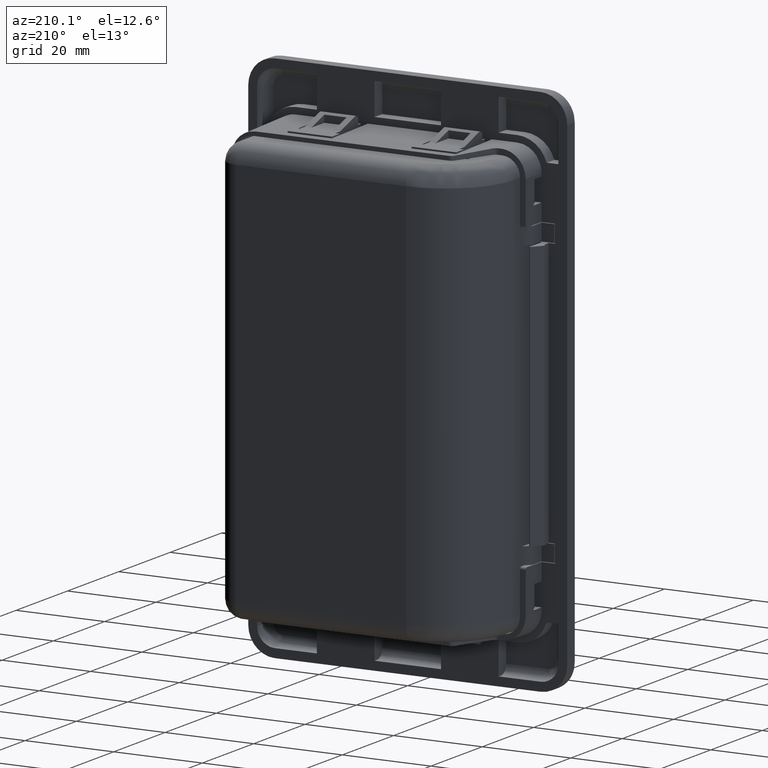
[diagram: clean part render]
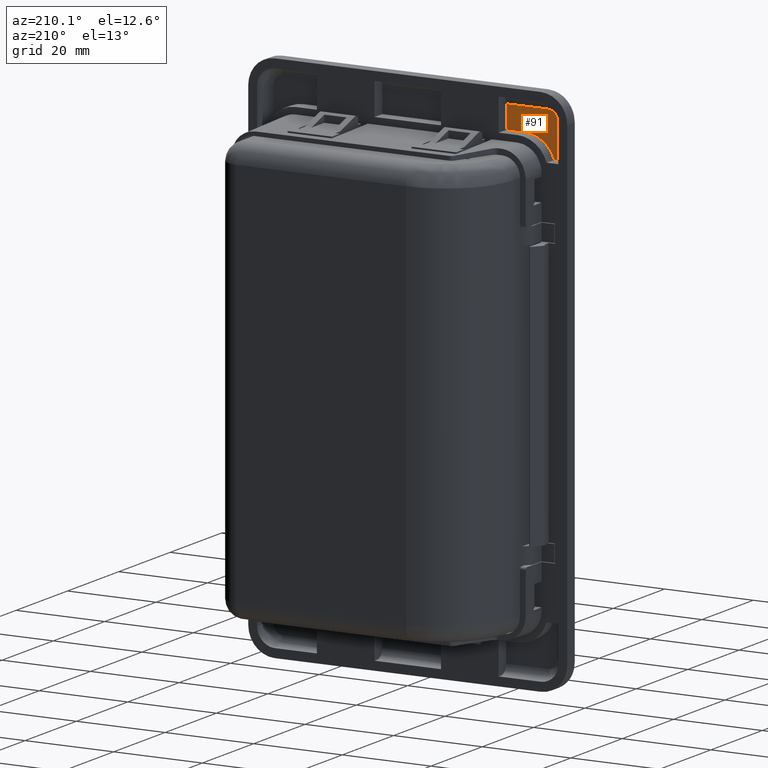
[diagram: same view with one face highlighted and labeled with its STEP entity id]
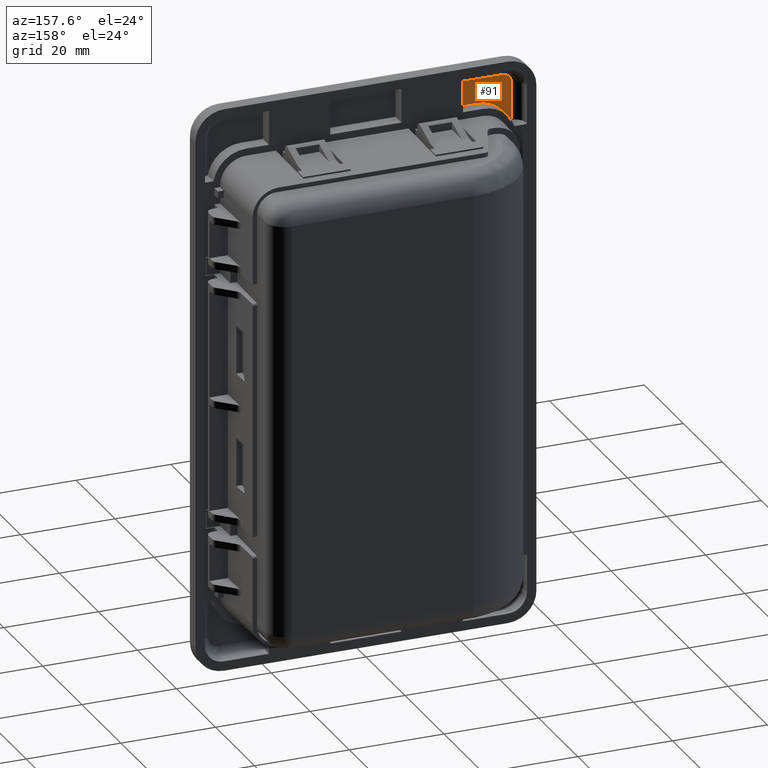
[diagram: same view with one face highlighted and labeled with its STEP entity id]
A machine part, auxiliary view. The second image highlights one B-rep face of the part: STEP entity #91.
A second angle (auxiliary view) of the same face is appended — the face is thin or edge-on in the first view.
In plain terms, the highlighted planar face has unit normal (-0, 1, 0).
Its self-contained STEP definition (entity closure, byte-faithful):
#91=ADVANCED_FACE('',(#1526),#1525,.T.);
#1525=PLANE('',#11063);
#1526=FACE_OUTER_BOUND('',#11064,.T.);
#11060=CARTESIAN_POINT('',(-3.31499999995E+001,-3.00000000001E+000,4.50000000000E+001));
#11061=DIRECTION('',(-0.00000000000E+000,1.00000000000E+000,0.00000000000E+000));
#11062=DIRECTION('',(0.00000000000E+000,0.00000000000E+000,1.00000000000E+000));
#11063=AXIS2_PLACEMENT_3D('',#11060,#11061,#11062);
#11064=EDGE_LOOP('',(#19140,#19141,#19142,#19143,#19144,#19145,#19146));
#19140=ORIENTED_EDGE('',*,*,#23863,.T.);
#19141=ORIENTED_EDGE('',*,*,#23864,.T.);
#19142=ORIENTED_EDGE('',*,*,#23840,.F.);
#19143=ORIENTED_EDGE('',*,*,#23847,.F.);
#19144=ORIENTED_EDGE('',*,*,#23850,.T.);
#19145=ORIENTED_EDGE('',*,*,#23853,.F.);
#19146=ORIENTED_EDGE('',*,*,#23865,.T.);
#23840=EDGE_CURVE('',#27302,#27303,#27304,.T.);
#23847=EDGE_CURVE('',#27344,#27302,#27351,.T.);
#23850=EDGE_CURVE('',#27344,#27364,#27371,.T.);
#23853=EDGE_CURVE('',#27385,#27364,#27392,.T.);
#23863=EDGE_CURVE('',#27456,#27457,#27458,.T.);
#23864=EDGE_CURVE('',#27457,#27303,#27464,.T.);
#23865=EDGE_CURVE('',#27385,#27456,#27470,.T.);
#27302=VERTEX_POINT('',#42540);
#27303=VERTEX_POINT('',#42541);
#27304=LINE('',#42542,#42543);
#27344=VERTEX_POINT('',#42565);
#27351=LINE('',#42569,#42570);
#27364=VERTEX_POINT('',#42577);
#27371=CIRCLE('',#42584,7.00000000000E+000);
#27385=VERTEX_POINT('',#42590);
#27392=LINE('',#42595,#42596);
#27456=VERTEX_POINT('',#42631);
#27457=VERTEX_POINT('',#42632);
#27458=CIRCLE('',#42636,2.00000000000E+000);
#27464=LINE('',#42637,#42638);
#27470=LINE('',#42640,#42641);
#42540=CARTESIAN_POINT('',(-2.05000000003E+001,-3.00000000001E+000,5.07999999999E+001));
#42541=CARTESIAN_POINT('',(-2.05000000003E+001,-3.00000000001E+000,5.60000000000E+001));
#42542=CARTESIAN_POINT('',(-2.05000000003E+001,-3.00000000001E+000,5.07999999999E+001));
#42543=VECTOR('',#42544,5.20000000009E+000);
#42544=DIRECTION('',(0.00000000000E+000,0.00000000000E+000,1.00000000000E+000));
#42565=CARTESIAN_POINT('',(-2.46999999997E+001,-3.00000000001E+000,5.08000000001E+001));
#42569=CARTESIAN_POINT('',(-2.46999999997E+001,-3.00000000001E+000,5.07999999999E+001));
#42570=VECTOR('',#42571,4.19999999944E+000);
#42571=DIRECTION('',(1.00000000000E+000,0.00000000000E+000,0.00000000000E+000));
#42577=CARTESIAN_POINT('',(-3.13452990901E+001,-3.00000000001E+000,4.60000000000E+001));
#42581=CARTESIAN_POINT('',(-2.46999999997E+001,-3.00000000001E+000,4.38000000001E+001));
#42582=DIRECTION('',(0.00000000000E+000,-1.00000000000E+000,0.00000000000E+000));
#42583=DIRECTION('',(-0.00000000000E+000,-0.00000000000E+000,-1.00000000000E+000));
#42584=AXIS2_PLACEMENT_3D('',#42581,#42582,#42583);
#42590=CARTESIAN_POINT('',(-3.19999999996E+001,-3.00000000001E+000,4.60000000000E+001));
#42595=CARTESIAN_POINT('',(-3.19999999996E+001,-3.00000000001E+000,4.60000000000E+001));
#42596=VECTOR('',#42597,6.54700909527E-001);
#42597=DIRECTION('',(1.00000000000E+000,0.00000000000E+000,0.00000000000E+000));
#42631=CARTESIAN_POINT('',(-3.19999999996E+001,-3.00000000001E+000,5.40000000000E+001));
#42632=CARTESIAN_POINT('',(-2.99999999996E+001,-3.00000000001E+000,5.60000000000E+001));
#42633=CARTESIAN_POINT('',(-2.99999999996E+001,-3.00000000001E+000,5.40000000000E+001));
#42634=DIRECTION('',(-0.00000000000E+000,1.00000000000E+000,0.00000000000E+000));
#42635=DIRECTION('',(-0.00000000000E+000,-0.00000000000E+000,-1.00000000000E+000));
#42636=AXIS2_PLACEMENT_3D('',#42633,#42634,#42635);
#42637=CARTESIAN_POINT('',(-2.99999999996E+001,-3.00000000001E+000,5.60000000000E+001));
#42638=VECTOR('',#42639,9.49999999933E+000);
#42639=DIRECTION('',(1.00000000000E+000,0.00000000000E+000,-1.19670355505E-014));
#42640=CARTESIAN_POINT('',(-3.19999999996E+001,-3.00000000001E+000,4.60000000000E+001));
#42641=VECTOR('',#42642,8.00000000000E+000);
#42642=DIRECTION('',(1.37667655054E-014,0.00000000000E+000,1.00000000000E+000));